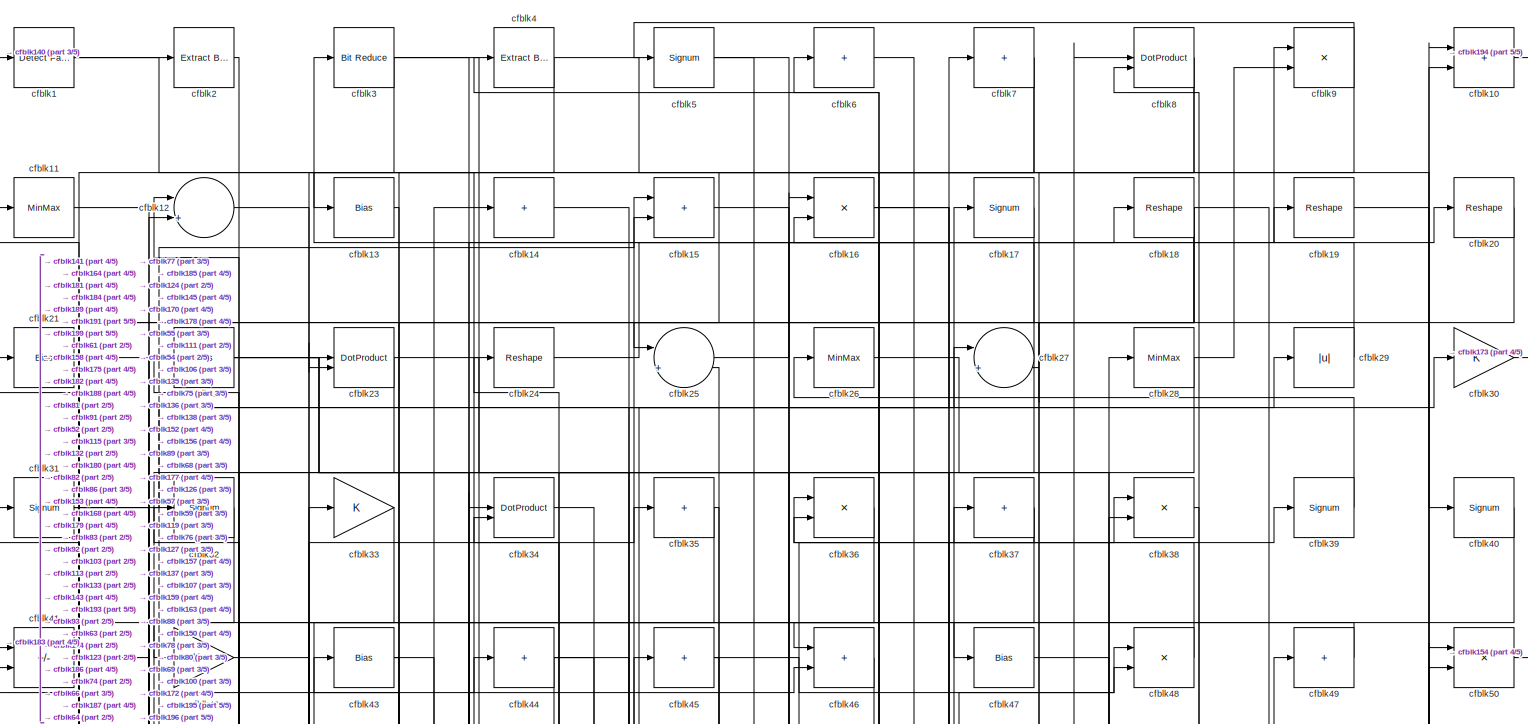
[diagram: root canvas - part 1/5, full width, top band]
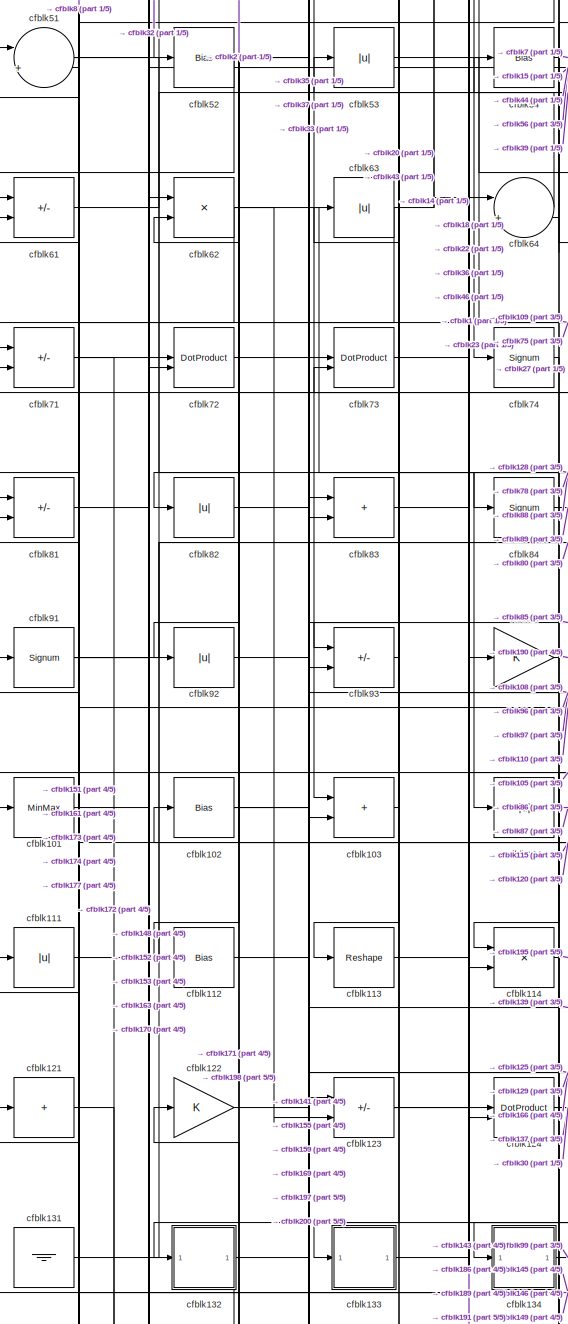
[diagram: root canvas - part 2/5, middle left region]
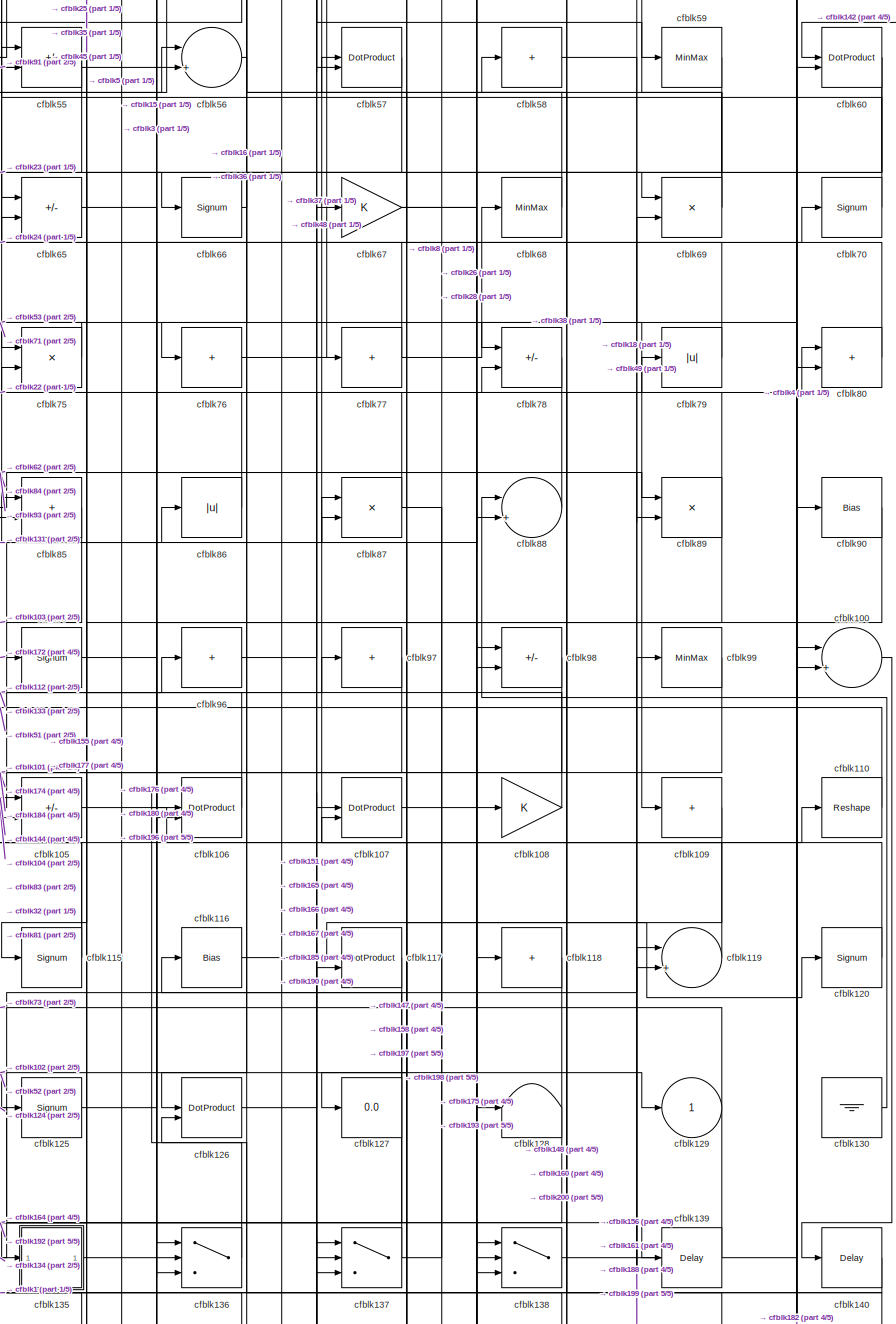
[diagram: root canvas - part 3/5, middle right region]
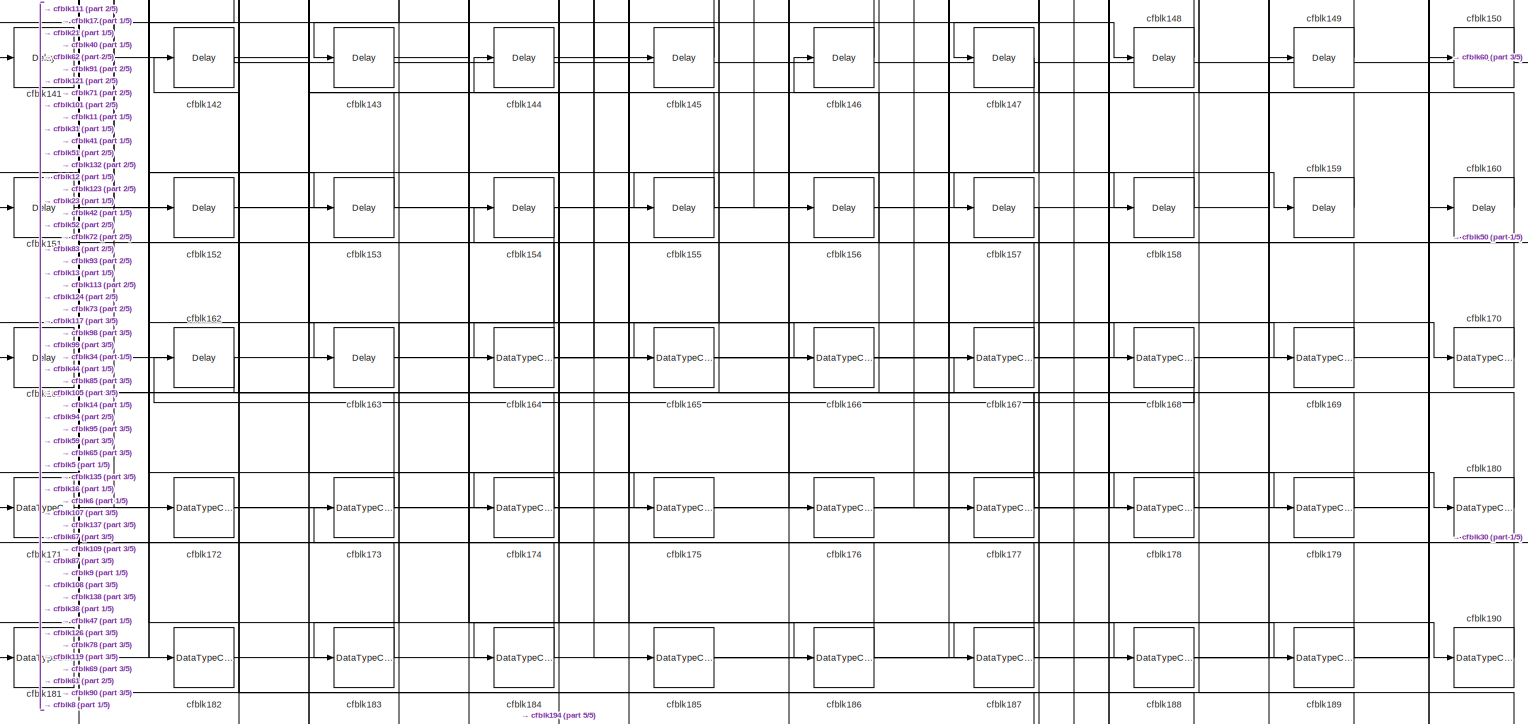
[diagram: root canvas - part 4/5, full width, bottom band]
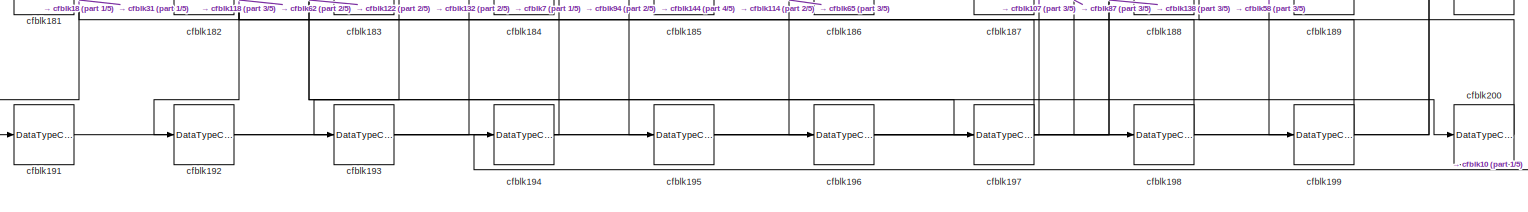
[diagram: root canvas - part 5/5, full width, bottom band]
MODEL slx_2bb0f8d68189
KIND model
CONFIG AbsTol = auto
CONFIG EnableMultiTasking = off
CONFIG FixedStep = auto
CONFIG MaxStep = auto
CONFIG MinStep = auto
CONFIG RelTol = 1e-3
CONFIG SampleTimeConstraint = Unconstrained
CONFIG SolverName = VariableStepAuto
CONFIG StartTime = 0.0
CONFIG StopTime = 10.0
BLOCK [Reference] cfblk1  REF=hdlsllib/Logic and Bit
Operations/Detect Fall
Negative
  SourceBlock = hdlsllib/Logic and Bit\nOperations/Detect Fall\nNegative
  SourceType = Detect Fall Negative
BLOCK [Sum] cfblk10
  IconShape = rectangular
BLOCK [Sum] cfblk100
  Inputs = |++
BLOCK [MinMax] cfblk101
BLOCK [Bias] cfblk102
  Bias = 0.0
  SaturateOnIntegerOverflow = off
BLOCK [Sum] cfblk103
  IconShape = rectangular
BLOCK [Abs] cfblk104
  SaturateOnIntegerOverflow = off
BLOCK [Sum] cfblk105
  IconShape = rectangular
  Inputs = +-
BLOCK [DotProduct] cfblk106
  OutDataTypeStr = Inherit: Inherit via internal rule
BLOCK [DotProduct] cfblk107
  OutDataTypeStr = Inherit: Inherit via internal rule
BLOCK [Gain] cfblk108
BLOCK [Sum] cfblk109
  IconShape = rectangular
  Inputs = +
BLOCK [MinMax] cfblk11
BLOCK [Reshape] cfblk110
BLOCK [Abs] cfblk111
  SaturateOnIntegerOverflow = off
BLOCK [Bias] cfblk112
  Bias = 0.0
  SaturateOnIntegerOverflow = off
BLOCK [Reshape] cfblk113
BLOCK [Product] cfblk114
  Inputs = */
  RndMeth = Zero
  SaturateOnIntegerOverflow = on
BLOCK [Signum] cfblk115
BLOCK [Bias] cfblk116
  Bias = 0.0
  SaturateOnIntegerOverflow = off
BLOCK [DotProduct] cfblk117
  OutDataTypeStr = Inherit: Inherit via internal rule
BLOCK [Sum] cfblk118
  IconShape = rectangular
  Inputs = +
BLOCK [Sum] cfblk119
  Inputs = |++
BLOCK [Sum] cfblk12
  Inputs = |++
BLOCK [Signum] cfblk120
BLOCK [Sum] cfblk121
  IconShape = rectangular
  Inputs = +
BLOCK [Gain] cfblk122
BLOCK [Sum] cfblk123
  IconShape = rectangular
  Inputs = +-
BLOCK [DotProduct] cfblk124
  OutDataTypeStr = Inherit: Inherit via internal rule
BLOCK [Signum] cfblk125
BLOCK [DotProduct] cfblk126
  OutDataTypeStr = Inherit: Inherit via internal rule
BLOCK [Display] cfblk127
  Decimation = 1
BLOCK [Terminator] cfblk128
BLOCK [Outport] cfblk129
  VectorParamsAs1DForOutWhenUnconnected = off
BLOCK [Bias] cfblk13
  Bias = 0.0
  SaturateOnIntegerOverflow = off
BLOCK [Ground] cfblk130
BLOCK [Ground] cfblk131
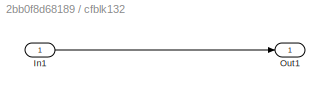
BLOCK [SubSystem] cfblk132
  LibrarySourceBlock = hdlsllib/Ports &\nSubsystems/Subsystem
BLOCK [Inport] cfblk132/In1
BLOCK [Outport] cfblk132/Out1
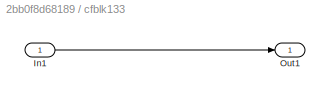
BLOCK [SubSystem] cfblk133
  LibrarySourceBlock = hdlsllib/Ports &\nSubsystems/Subsystem
BLOCK [Inport] cfblk133/In1
BLOCK [Outport] cfblk133/Out1
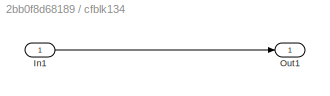
BLOCK [SubSystem] cfblk134
  LibrarySourceBlock = hdlsllib/Ports &\nSubsystems/Subsystem
BLOCK [Inport] cfblk134/In1
BLOCK [Outport] cfblk134/Out1
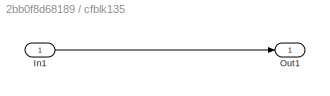
BLOCK [SubSystem] cfblk135
  LibrarySourceBlock = hdlsllib/Ports &\nSubsystems/Subsystem
BLOCK [Inport] cfblk135/In1
BLOCK [Outport] cfblk135/Out1
BLOCK [Switch] cfblk136
  InputSameDT = off
  SaturateOnIntegerOverflow = off
BLOCK [Switch] cfblk137
  InputSameDT = off
  SaturateOnIntegerOverflow = off
BLOCK [Switch] cfblk138
  InputSameDT = off
  SaturateOnIntegerOverflow = off
BLOCK [Delay] cfblk139
  InputPortMap = u0
  SampleTime = 1
BLOCK [Sum] cfblk14
  IconShape = rectangular
  Inputs = +
BLOCK [Delay] cfblk140
  InputPortMap = u0
  SampleTime = 1
BLOCK [Delay] cfblk141
  InputPortMap = u0
  SampleTime = 1
BLOCK [Delay] cfblk142
  InputPortMap = u0
  SampleTime = 1
BLOCK [Delay] cfblk143
  InputPortMap = u0
  SampleTime = 1
BLOCK [Delay] cfblk144
  InputPortMap = u0
  SampleTime = 1
BLOCK [Delay] cfblk145
  InputPortMap = u0
  SampleTime = 1
BLOCK [Delay] cfblk146
  InputPortMap = u0
  SampleTime = 1
BLOCK [Delay] cfblk147
  InputPortMap = u0
  SampleTime = 1
BLOCK [Delay] cfblk148
  InputPortMap = u0
  SampleTime = 1
BLOCK [Delay] cfblk149
  InputPortMap = u0
  SampleTime = 1
BLOCK [Sum] cfblk15
  IconShape = rectangular
BLOCK [Delay] cfblk150
  InputPortMap = u0
  SampleTime = 1
BLOCK [Delay] cfblk151
  InputPortMap = u0
  SampleTime = 1
BLOCK [Delay] cfblk152
  InputPortMap = u0
  SampleTime = 1
BLOCK [Delay] cfblk153
  InputPortMap = u0
  SampleTime = 1
BLOCK [Delay] cfblk154
  InputPortMap = u0
  SampleTime = 1
BLOCK [Delay] cfblk155
  InputPortMap = u0
  SampleTime = 1
BLOCK [Delay] cfblk156
  InputPortMap = u0
  SampleTime = 1
BLOCK [Delay] cfblk157
  InputPortMap = u0
  SampleTime = 1
BLOCK [Delay] cfblk158
  InputPortMap = u0
  SampleTime = 1
BLOCK [Delay] cfblk159
  InputPortMap = u0
  SampleTime = 1
BLOCK [Product] cfblk16
  Inputs = */
  RndMeth = Zero
  SaturateOnIntegerOverflow = on
BLOCK [Delay] cfblk160
  InputPortMap = u0
  SampleTime = 1
BLOCK [Delay] cfblk161
  InputPortMap = u0
  SampleTime = 1
BLOCK [Delay] cfblk162
  InputPortMap = u0
  SampleTime = 1
BLOCK [Delay] cfblk163
  InputPortMap = u0
  SampleTime = 1
BLOCK [DataTypeConversion] cfblk164
  RndMeth = Floor
  SaturateOnIntegerOverflow = off
BLOCK [DataTypeConversion] cfblk165
  OutDataTypeStr = uint8
  RndMeth = Floor
  SaturateOnIntegerOverflow = off
BLOCK [DataTypeConversion] cfblk166
  OutDataTypeStr = uint8
  RndMeth = Floor
  SaturateOnIntegerOverflow = off
BLOCK [DataTypeConversion] cfblk167
  OutDataTypeStr = uint8
  RndMeth = Floor
  SaturateOnIntegerOverflow = off
BLOCK [DataTypeConversion] cfblk168
  OutDataTypeStr = uint8
  RndMeth = Floor
  SaturateOnIntegerOverflow = off
BLOCK [DataTypeConversion] cfblk169
  OutDataTypeStr = uint8
  RndMeth = Floor
  SaturateOnIntegerOverflow = off
BLOCK [Signum] cfblk17
BLOCK [DataTypeConversion] cfblk170
  OutDataTypeStr = uint8
  RndMeth = Floor
  SaturateOnIntegerOverflow = off
BLOCK [DataTypeConversion] cfblk171
  OutDataTypeStr = uint8
  RndMeth = Floor
  SaturateOnIntegerOverflow = off
BLOCK [DataTypeConversion] cfblk172
  RndMeth = Floor
  SaturateOnIntegerOverflow = off
BLOCK [DataTypeConversion] cfblk173
  OutDataTypeStr = uint8
  RndMeth = Floor
  SaturateOnIntegerOverflow = off
BLOCK [DataTypeConversion] cfblk174
  RndMeth = Floor
  SaturateOnIntegerOverflow = off
BLOCK [DataTypeConversion] cfblk175
  OutDataTypeStr = uint8
  RndMeth = Floor
  SaturateOnIntegerOverflow = off
BLOCK [DataTypeConversion] cfblk176
  OutDataTypeStr = uint8
  RndMeth = Floor
  SaturateOnIntegerOverflow = off
BLOCK [DataTypeConversion] cfblk177
  RndMeth = Floor
  SaturateOnIntegerOverflow = off
BLOCK [DataTypeConversion] cfblk178
  OutDataTypeStr = uint8
  RndMeth = Floor
  SaturateOnIntegerOverflow = off
BLOCK [DataTypeConversion] cfblk179
  OutDataTypeStr = uint8
  RndMeth = Floor
  SaturateOnIntegerOverflow = off
BLOCK [Reshape] cfblk18
BLOCK [DataTypeConversion] cfblk180
  OutDataTypeStr = uint8
  RndMeth = Floor
  SaturateOnIntegerOverflow = off
BLOCK [DataTypeConversion] cfblk181
  OutDataTypeStr = uint8
  RndMeth = Floor
  SaturateOnIntegerOverflow = off
BLOCK [DataTypeConversion] cfblk182
  OutDataTypeStr = uint8
  RndMeth = Floor
  SaturateOnIntegerOverflow = off
BLOCK [DataTypeConversion] cfblk183
  OutDataTypeStr = uint8
  RndMeth = Floor
  SaturateOnIntegerOverflow = off
BLOCK [DataTypeConversion] cfblk184
  OutDataTypeStr = uint8
  RndMeth = Floor
  SaturateOnIntegerOverflow = off
BLOCK [DataTypeConversion] cfblk185
  RndMeth = Floor
  SaturateOnIntegerOverflow = off
BLOCK [DataTypeConversion] cfblk186
  OutDataTypeStr = uint8
  RndMeth = Floor
  SaturateOnIntegerOverflow = off
BLOCK [DataTypeConversion] cfblk187
  OutDataTypeStr = uint8
  RndMeth = Floor
  SaturateOnIntegerOverflow = off
BLOCK [DataTypeConversion] cfblk188
  OutDataTypeStr = uint8
  RndMeth = Floor
  SaturateOnIntegerOverflow = off
BLOCK [DataTypeConversion] cfblk189
  OutDataTypeStr = uint8
  RndMeth = Floor
  SaturateOnIntegerOverflow = off
BLOCK [Reshape] cfblk19
BLOCK [DataTypeConversion] cfblk190
  OutDataTypeStr = uint8
  RndMeth = Floor
  SaturateOnIntegerOverflow = off
BLOCK [DataTypeConversion] cfblk191
  OutDataTypeStr = uint8
  RndMeth = Floor
  SaturateOnIntegerOverflow = off
BLOCK [DataTypeConversion] cfblk192
  OutDataTypeStr = uint8
  RndMeth = Floor
  SaturateOnIntegerOverflow = off
BLOCK [DataTypeConversion] cfblk193
  OutDataTypeStr = uint8
  RndMeth = Floor
  SaturateOnIntegerOverflow = off
BLOCK [DataTypeConversion] cfblk194
  OutDataTypeStr = uint8
  RndMeth = Floor
  SaturateOnIntegerOverflow = off
BLOCK [DataTypeConversion] cfblk195
  OutDataTypeStr = uint8
  RndMeth = Floor
  SaturateOnIntegerOverflow = off
BLOCK [DataTypeConversion] cfblk196
  OutDataTypeStr = uint8
  RndMeth = Floor
  SaturateOnIntegerOverflow = off
BLOCK [DataTypeConversion] cfblk197
  RndMeth = Floor
  SaturateOnIntegerOverflow = off
BLOCK [DataTypeConversion] cfblk198
  OutDataTypeStr = uint8
  RndMeth = Floor
  SaturateOnIntegerOverflow = off
BLOCK [DataTypeConversion] cfblk199
  OutDataTypeStr = uint8
  RndMeth = Floor
  SaturateOnIntegerOverflow = off
BLOCK [Reference] cfblk2  REF=simulink/Logic and Bit
Operations/Extract Bits
  LibrarySourceBlock = hdlsllib/Logic and Bit\nOperations/Extract Bits
  SourceBlock = simulink/Logic and Bit\nOperations/Extract Bits
  SourceType = Extract Bits
BLOCK [Reshape] cfblk20
BLOCK [DataTypeConversion] cfblk200
  OutDataTypeStr = uint8
  RndMeth = Floor
  SaturateOnIntegerOverflow = off
BLOCK [Bias] cfblk21
  Bias = 0.0
  SaturateOnIntegerOverflow = off
BLOCK [Bias] cfblk22
  Bias = 0.0
  SaturateOnIntegerOverflow = off
BLOCK [DotProduct] cfblk23
  OutDataTypeStr = Inherit: Inherit via internal rule
BLOCK [Reshape] cfblk24
BLOCK [Sum] cfblk25
  Inputs = |++
BLOCK [MinMax] cfblk26
BLOCK [Sum] cfblk27
  Inputs = |++
BLOCK [MinMax] cfblk28
BLOCK [Abs] cfblk29
  SaturateOnIntegerOverflow = off
BLOCK [Reference] cfblk3  REF=hdlsllib/Logic and Bit
Operations/Bit Reduce
  SourceBlock = hdlsllib/Logic and Bit\nOperations/Bit Reduce
  SourceType = Bit Reduce
BLOCK [Gain] cfblk30
BLOCK [Signum] cfblk31
BLOCK [Signum] cfblk32
BLOCK [Gain] cfblk33
BLOCK [DotProduct] cfblk34
  OutDataTypeStr = Inherit: Inherit via internal rule
BLOCK [Sum] cfblk35
  IconShape = rectangular
  Inputs = +
BLOCK [Product] cfblk36
  Inputs = */
  RndMeth = Zero
  SaturateOnIntegerOverflow = on
BLOCK [Sum] cfblk37
  IconShape = rectangular
  Inputs = +
BLOCK [Product] cfblk38
  Inputs = */
  RndMeth = Zero
  SaturateOnIntegerOverflow = on
BLOCK [Signum] cfblk39
BLOCK [Reference] cfblk4  REF=simulink/Logic and Bit
Operations/Extract Bits
  LibrarySourceBlock = hdlsllib/Logic and Bit\nOperations/Extract Bits
  SourceBlock = simulink/Logic and Bit\nOperations/Extract Bits
  SourceType = Extract Bits
BLOCK [Signum] cfblk40
BLOCK [Sum] cfblk41
  IconShape = rectangular
  Inputs = +-
BLOCK [Gain] cfblk42
BLOCK [Bias] cfblk43
  Bias = 0.0
  SaturateOnIntegerOverflow = off
BLOCK [Sum] cfblk44
  IconShape = rectangular
  Inputs = +
BLOCK [Sum] cfblk45
  IconShape = rectangular
  Inputs = +
BLOCK [Sum] cfblk46
  IconShape = rectangular
BLOCK [Bias] cfblk47
  Bias = 0.0
  SaturateOnIntegerOverflow = off
BLOCK [Product] cfblk48
  Inputs = */
  RndMeth = Zero
  SaturateOnIntegerOverflow = on
BLOCK [Sum] cfblk49
  IconShape = rectangular
  Inputs = +
BLOCK [Signum] cfblk5
BLOCK [Product] cfblk50
  Inputs = */
  RndMeth = Zero
  SaturateOnIntegerOverflow = on
BLOCK [Sum] cfblk51
  Inputs = |++
BLOCK [Bias] cfblk52
  Bias = 0.0
  SaturateOnIntegerOverflow = off
BLOCK [Abs] cfblk53
  SaturateOnIntegerOverflow = off
BLOCK [Bias] cfblk54
  Bias = 0.0
  SaturateOnIntegerOverflow = off
BLOCK [Sum] cfblk55
  IconShape = rectangular
  Inputs = +-
BLOCK [Sum] cfblk56
  Inputs = |++
BLOCK [DotProduct] cfblk57
  OutDataTypeStr = Inherit: Inherit via internal rule
BLOCK [Sum] cfblk58
  IconShape = rectangular
  Inputs = +
BLOCK [MinMax] cfblk59
BLOCK [Sum] cfblk6
  IconShape = rectangular
  Inputs = +
BLOCK [DotProduct] cfblk60
  OutDataTypeStr = Inherit: Inherit via internal rule
BLOCK [Sum] cfblk61
  IconShape = rectangular
  Inputs = +-
BLOCK [Product] cfblk62
  Inputs = */
  RndMeth = Zero
  SaturateOnIntegerOverflow = on
BLOCK [Abs] cfblk63
  SaturateOnIntegerOverflow = off
BLOCK [Sum] cfblk64
  Inputs = |++
BLOCK [Sum] cfblk65
  IconShape = rectangular
  Inputs = +-
BLOCK [Signum] cfblk66
BLOCK [Gain] cfblk67
BLOCK [MinMax] cfblk68
BLOCK [Product] cfblk69
  Inputs = */
  RndMeth = Zero
  SaturateOnIntegerOverflow = on
BLOCK [Sum] cfblk7
  IconShape = rectangular
  Inputs = +
BLOCK [Signum] cfblk70
BLOCK [Sum] cfblk71
  IconShape = rectangular
  Inputs = +-
BLOCK [DotProduct] cfblk72
  OutDataTypeStr = Inherit: Inherit via internal rule
BLOCK [DotProduct] cfblk73
  OutDataTypeStr = Inherit: Inherit via internal rule
BLOCK [Signum] cfblk74
BLOCK [Product] cfblk75
  Inputs = */
  RndMeth = Zero
  SaturateOnIntegerOverflow = on
BLOCK [Sum] cfblk76
  IconShape = rectangular
  Inputs = +
BLOCK [Sum] cfblk77
  IconShape = rectangular
  Inputs = +
BLOCK [Sum] cfblk78
  IconShape = rectangular
  Inputs = +-
BLOCK [Abs] cfblk79
  SaturateOnIntegerOverflow = off
BLOCK [DotProduct] cfblk8
  OutDataTypeStr = Inherit: Inherit via internal rule
BLOCK [Sum] cfblk80
  IconShape = rectangular
BLOCK [Sum] cfblk81
  IconShape = rectangular
  Inputs = +-
BLOCK [Abs] cfblk82
  SaturateOnIntegerOverflow = off
BLOCK [Sum] cfblk83
  IconShape = rectangular
BLOCK [Signum] cfblk84
BLOCK [Sum] cfblk85
  IconShape = rectangular
BLOCK [Abs] cfblk86
  SaturateOnIntegerOverflow = off
BLOCK [Product] cfblk87
  Inputs = */
  RndMeth = Zero
  SaturateOnIntegerOverflow = on
BLOCK [Sum] cfblk88
  Inputs = |++
BLOCK [Product] cfblk89
  Inputs = */
  RndMeth = Zero
  SaturateOnIntegerOverflow = on
BLOCK [Product] cfblk9
  Inputs = */
  RndMeth = Zero
  SaturateOnIntegerOverflow = on
BLOCK [Bias] cfblk90
  Bias = 0.0
  SaturateOnIntegerOverflow = off
BLOCK [Signum] cfblk91
BLOCK [Abs] cfblk92
  SaturateOnIntegerOverflow = off
BLOCK [Sum] cfblk93
  IconShape = rectangular
  Inputs = +-
BLOCK [Gain] cfblk94
BLOCK [Signum] cfblk95
BLOCK [Sum] cfblk96
  IconShape = rectangular
  Inputs = +
BLOCK [Sum] cfblk97
  IconShape = rectangular
  Inputs = +
BLOCK [Sum] cfblk98
  IconShape = rectangular
  Inputs = +-
BLOCK [MinMax] cfblk99
LINE cfblk100:1 -> cfblk140:1
LINE cfblk101:1 -> cfblk148:1
NET cfblk102:1 -> cfblk129:1, cfblk56:1
LINE cfblk103:1 -> cfblk63:1
NET cfblk104:1 -> cfblk86:1, cfblk87:1
LINE cfblk105:1 -> cfblk110:1
LINE cfblk106:1 -> cfblk25:2
LINE cfblk107:1 -> cfblk28:1
LINE cfblk108:1 -> cfblk53:1
LINE cfblk109:1 -> cfblk147:1
LINE cfblk10:1 -> cfblk194:1
LINE cfblk110:1 -> cfblk51:1
LINE cfblk111:1 -> cfblk15:2
LINE cfblk112:1 -> cfblk97:1
LINE cfblk113:1 -> cfblk189:1
LINE cfblk114:1 -> cfblk195:1
NET cfblk115:1 -> cfblk32:1, cfblk81:2
LINE cfblk116:1 -> cfblk120:1
LINE cfblk117:1 -> cfblk164:1
LINE cfblk118:1 -> cfblk192:1
LINE cfblk119:1 -> cfblk37:1
LINE cfblk11:1 -> cfblk188:1
LINE cfblk120:1 -> cfblk102:1
LINE cfblk121:1 -> cfblk172:1
LINE cfblk122:1 -> cfblk197:1
NET cfblk123:1 -> cfblk18:1, cfblk46:2, cfblk73:2
NET cfblk124:1 -> cfblk137:2, cfblk30:1
LINE cfblk125:1 -> cfblk70:1
LINE cfblk126:1 -> cfblk38:1
LINE cfblk12:1 -> cfblk179:1
LINE cfblk130:1 -> cfblk88:1
LINE cfblk131:1 -> cfblk80:1
LINE cfblk132/In1:1 -> cfblk132/Out1:1
NET cfblk132:1 -> cfblk171:1, cfblk200:1
LINE cfblk133/In1:1 -> cfblk133/Out1:1
LINE cfblk133:1 -> cfblk96:1
LINE cfblk134/In1:1 -> cfblk134/Out1:1
LINE cfblk134:1 -> cfblk99:1
LINE cfblk135/In1:1 -> cfblk135/Out1:1
LINE cfblk135:1 -> cfblk180:1
LINE cfblk136:1 -> cfblk106:1
NET cfblk137:1 -> cfblk116:1, cfblk8:1
LINE cfblk138:1 -> cfblk100:1
LINE cfblk139:1 -> cfblk73:1
LINE cfblk13:1 -> cfblk143:1
LINE cfblk140:1 -> cfblk1:1
LINE cfblk141:1 -> cfblk93:2
LINE cfblk142:1 -> cfblk60:1
LINE cfblk143:1 -> cfblk124:1
LINE cfblk144:1 -> cfblk105:1
LINE cfblk145:1 -> cfblk51:2
LINE cfblk146:1 -> cfblk62:1
LINE cfblk147:1 -> cfblk165:1
LINE cfblk148:1 -> cfblk126:2
LINE cfblk149:1 -> cfblk61:2
LINE cfblk14:1 -> cfblk178:1
LINE cfblk150:1 -> cfblk8:2
LINE cfblk151:1 -> cfblk137:3
LINE cfblk152:1 -> cfblk16:1
LINE cfblk153:1 -> cfblk23:1
LINE cfblk154:1 -> cfblk183:1
LINE cfblk155:1 -> cfblk83:1
LINE cfblk156:1 -> cfblk69:2
LINE cfblk157:1 -> cfblk187:1
LINE cfblk158:1 -> cfblk87:2
LINE cfblk159:1 -> cfblk123:1
LINE cfblk15:1 -> cfblk136:1
LINE cfblk160:1 -> cfblk78:2
LINE cfblk161:1 -> cfblk119:2
LINE cfblk162:1 -> cfblk167:1
LINE cfblk163:1 -> cfblk38:2
NET cfblk164:1 -> cfblk138:3, cfblk150:1, cfblk21:1, cfblk85:2
LINE cfblk165:1 -> cfblk117:1
LINE cfblk166:1 -> cfblk117:2
LINE cfblk167:1 -> cfblk107:1
LINE cfblk168:1 -> cfblk162:1
LINE cfblk169:1 -> cfblk146:1
NET cfblk16:1 -> cfblk59:1, cfblk77:1
LINE cfblk170:1 -> cfblk72:1
LINE cfblk171:1 -> cfblk72:2
NET cfblk172:1 -> cfblk50:2, cfblk90:1, cfblk95:1
LINE cfblk173:1 -> cfblk121:1
NET cfblk174:1 -> cfblk108:1, cfblk91:1
LINE cfblk175:1 -> cfblk98:1
LINE cfblk176:1 -> cfblk98:2
NET cfblk177:1 -> cfblk111:1, cfblk149:1, cfblk65:2
LINE cfblk178:1 -> cfblk6:1
LINE cfblk179:1 -> cfblk142:1
LINE cfblk17:1 -> cfblk141:1
LINE cfblk180:1 -> cfblk12:1
LINE cfblk181:1 -> cfblk12:2
LINE cfblk182:1 -> cfblk60:2
LINE cfblk183:1 -> cfblk41:1
LINE cfblk184:1 -> cfblk41:2
NET cfblk185:1 -> cfblk160:1, cfblk50:1, cfblk67:1
LINE cfblk186:1 -> cfblk34:1
LINE cfblk187:1 -> cfblk34:2
LINE cfblk188:1 -> cfblk119:1
LINE cfblk189:1 -> cfblk11:1
NET cfblk18:1 -> cfblk127:1, cfblk191:1, cfblk27:2, cfblk80:2
LINE cfblk190:1 -> cfblk137:1
LINE cfblk191:1 -> cfblk94:1
LINE cfblk192:1 -> cfblk138:1
LINE cfblk193:1 -> cfblk118:1
LINE cfblk194:1 -> cfblk144:1
LINE cfblk195:1 -> cfblk10:1
LINE cfblk196:1 -> cfblk10:2
NET cfblk197:1 -> cfblk107:2, cfblk62:2
LINE cfblk198:1 -> cfblk122:1
LINE cfblk199:1 -> cfblk31:1
LINE cfblk19:1 -> cfblk40:1
NET cfblk1:1 -> cfblk2:1, cfblk74:1
LINE cfblk200:1 -> cfblk58:1
LINE cfblk20:1 -> cfblk133:1
LINE cfblk21:1 -> cfblk175:1
NET cfblk22:1 -> cfblk114:2, cfblk55:2, cfblk57:2
NET cfblk23:1 -> cfblk132:1, cfblk66:1
LINE cfblk24:1 -> cfblk20:1
LINE cfblk25:1 -> cfblk19:1
LINE cfblk26:1 -> cfblk88:2
NET cfblk27:1 -> cfblk3:1, cfblk64:2
NET cfblk28:1 -> cfblk42:1, cfblk9:2
LINE cfblk29:1 -> cfblk9:1
LINE cfblk2:1 -> cfblk82:1
LINE cfblk30:1 -> cfblk173:1
NET cfblk31:1 -> cfblk158:1, cfblk29:1
LINE cfblk32:1 -> cfblk52:1
LINE cfblk33:1 -> cfblk103:1
LINE cfblk34:1 -> cfblk185:1
NET cfblk35:1 -> cfblk75:1, cfblk92:1
LINE cfblk36:1 -> cfblk124:2
NET cfblk37:1 -> cfblk36:2, cfblk83:2
LINE cfblk38:1 -> cfblk78:1
LINE cfblk39:1 -> cfblk26:1
NET cfblk3:1 -> cfblk136:2, cfblk138:2, cfblk13:1
LINE cfblk40:1 -> cfblk181:1
LINE cfblk41:1 -> cfblk182:1
LINE cfblk42:1 -> cfblk168:1
NET cfblk43:1 -> cfblk113:1, cfblk64:1
NET cfblk44:1 -> cfblk145:1, cfblk170:1, cfblk81:1
NET cfblk45:1 -> cfblk135:1, cfblk48:2
LINE cfblk46:1 -> cfblk114:1
LINE cfblk47:1 -> cfblk159:1
LINE cfblk48:1 -> cfblk17:1
LINE cfblk49:1 -> cfblk47:1
NET cfblk4:1 -> cfblk100:2, cfblk23:2
LINE cfblk50:1 -> cfblk154:1
NET cfblk51:1 -> cfblk104:1, cfblk163:1
NET cfblk52:1 -> cfblk125:1, cfblk151:1, cfblk166:1
LINE cfblk53:1 -> cfblk109:1
LINE cfblk54:1 -> cfblk7:1
LINE cfblk55:1 -> cfblk65:1
LINE cfblk56:1 -> cfblk76:1
LINE cfblk57:1 -> cfblk136:3
LINE cfblk58:1 -> cfblk199:1
LINE cfblk59:1 -> cfblk155:1
NET cfblk5:1 -> cfblk156:1, cfblk89:2
NET cfblk60:1 -> cfblk126:1, cfblk85:1
LINE cfblk61:1 -> cfblk39:1
NET cfblk62:1 -> cfblk123:2, cfblk128:1, cfblk161:1
NET cfblk63:1 -> cfblk112:1, cfblk14:1
LINE cfblk64:1 -> cfblk54:1
LINE cfblk65:1 -> cfblk196:1
LINE cfblk66:1 -> cfblk16:2
NET cfblk67:1 -> cfblk139:1, cfblk69:1
LINE cfblk68:1 -> cfblk36:1
NET cfblk69:1 -> cfblk49:1, cfblk4:1
LINE cfblk6:1 -> cfblk177:1
LINE cfblk70:1 -> cfblk55:1
NET cfblk71:1 -> cfblk152:1, cfblk153:1
LINE cfblk72:1 -> cfblk169:1
LINE cfblk73:1 -> cfblk186:1
LINE cfblk74:1 -> cfblk134:1
LINE cfblk75:1 -> cfblk71:1
LINE cfblk76:1 -> cfblk48:1
NET cfblk77:1 -> cfblk24:1, cfblk68:1
LINE cfblk78:1 -> cfblk93:1
LINE cfblk79:1 -> cfblk57:1
NET cfblk7:1 -> cfblk193:1, cfblk46:1
LINE cfblk80:1 -> cfblk45:1
LINE cfblk81:1 -> cfblk27:1
LINE cfblk82:1 -> cfblk35:1
LINE cfblk83:1 -> cfblk105:2
LINE cfblk84:1 -> cfblk89:1
LINE cfblk85:1 -> cfblk103:2
LINE cfblk86:1 -> cfblk22:1
NET cfblk87:1 -> cfblk198:1, cfblk71:2
LINE cfblk88:1 -> cfblk84:1
NET cfblk89:1 -> cfblk115:1, cfblk75:2
NET cfblk8:1 -> cfblk25:1, cfblk61:1
LINE cfblk90:1 -> cfblk106:2
NET cfblk91:1 -> cfblk15:1, cfblk44:1, cfblk56:2
LINE cfblk92:1 -> cfblk33:1
LINE cfblk93:1 -> cfblk43:1
LINE cfblk94:1 -> cfblk190:1
LINE cfblk95:1 -> cfblk176:1
LINE cfblk96:1 -> cfblk79:1
LINE cfblk97:1 -> cfblk101:1
LINE cfblk98:1 -> cfblk174:1
LINE cfblk99:1 -> cfblk184:1
NET cfblk9:1 -> cfblk157:1, cfblk5:1
note: NET lines group one-source signal fan-out (src -> all destinations, sorted); 1:1 wires keep LINE
